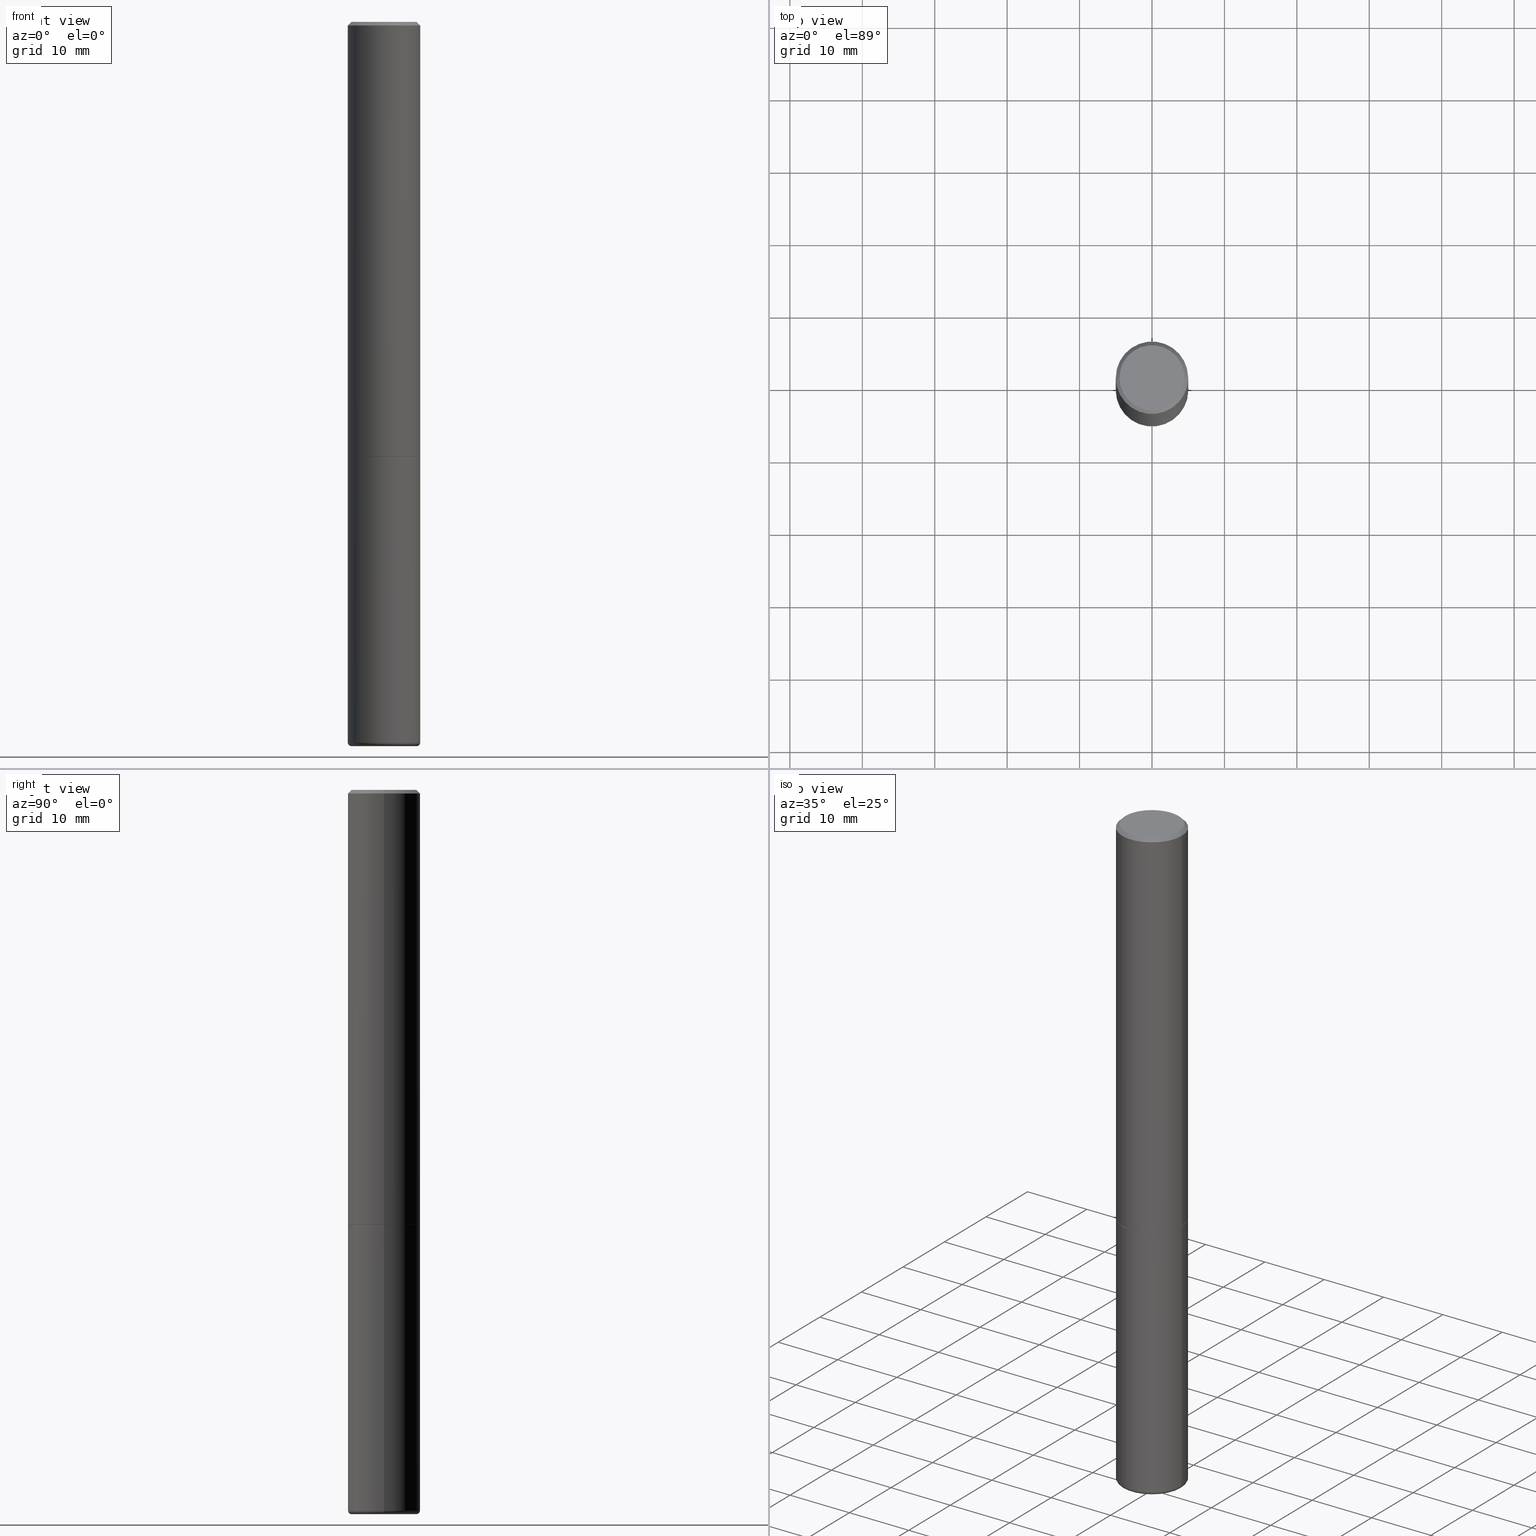
[diagram: canonical four-view strip — front | top / right | iso, engineering-drawing reading convention]
A machine part, canonical four-view strip (front | top / right | iso — engineering-drawing reading convention). The complete STEP part file that produces these views, byte-faithful:
ISO-10303-21;
HEADER;
FILE_DESCRIPTION (( 'STEP AP203' ),
    '1' );
FILE_NAME ('74426.STEP',
    '2024-03-06T15:13:11',
    ( '' ),
    ( '' ),
    'SwSTEP 2.0',
    'SolidWorks 2023',
    '' );
FILE_SCHEMA (( 'CONFIG_CONTROL_DESIGN' ));
ENDSEC;

DATA;
#1 = ORIENTED_EDGE ( 'NONE', *, *, #358, .T. ) ;
#2 = COORDINATED_UNIVERSAL_TIME_OFFSET ( 5, 0, .BEHIND. ) ;
#3 = DIRECTION ( 'NONE',  ( 1.000000000000000000, -6.982962677686270655E-15, 0.000000000000000000 ) ) ;
#4 = VERTEX_POINT ( 'NONE', #140 ) ;
#5 = AXIS2_PLACEMENT_3D ( 'NONE', #351, #193, #187 ) ;
#6 = EDGE_LOOP ( 'NONE', ( #265, #36 ) ) ;
#7 = PRODUCT_DEFINITION ( 'UNKNOWN', '', #348, #110 ) ;
#8 = VECTOR ( 'NONE', #238, 39.37007874015748143 ) ;
#9 = DIRECTION ( 'NONE',  ( 1.000000000000000000, -6.982962677686269866E-15, 0.000000000000000000 ) ) ;
#10 = CARTESIAN_POINT ( 'NONE',  ( -0.1968500000000000250, -9.563675158289009718E-15, -2.362199999999999633 ) ) ;
#11 = DIRECTION ( 'NONE',  ( 1.000000000000000000, -6.982962677686268288E-15, 0.000000000000000000 ) ) ;
#12 = CARTESIAN_POINT ( 'NONE',  ( -0.1968500000000000527, 1.304766576325678902E-15, -0.02000000000000004205 ) ) ;
#13 = ADVANCED_FACE ( 'NONE', ( #309 ), #249, .F. ) ;
#14 = DIRECTION ( 'NONE',  ( -2.445468806185136597E-29, 3.491481338843145583E-15, 1.000000000000000000 ) ) ;
#15 = CARTESIAN_POINT ( 'NONE',  ( 9.579634954469036932E-29, -1.367717984865025539E-14, -3.917300000000000448 ) ) ;
#16 = DIRECTION ( 'NONE',  ( -0.7071067811865462405, 2.468850131082243650E-15, -0.7071067811865486830 ) ) ;
#17 = VECTOR ( 'NONE', #163, 39.37007874015748854 ) ;
#18 = DIRECTION ( 'NONE',  ( 2.445468806185136597E-29, -3.491481338843145583E-15, -1.000000000000000000 ) ) ;
#19 = ORIENTED_EDGE ( 'NONE', *, *, #258, .F. ) ;
#20 = APPROVAL ( #64, 'UNSPECIFIED' ) ;
#21 = CARTESIAN_POINT ( 'NONE',  ( 0.1968500000000000527, -1.420318657638189516E-15, -0.02000000000000004205 ) ) ;
#22 = AXIS2_PLACEMENT_3D ( 'NONE', #122, #293, #253 ) ;
#23 = PLANE ( 'NONE',  #156 ) ;
#24 = FACE_OUTER_BOUND ( 'NONE', #6, .T. ) ;
#25 = PRODUCT_RELATED_PRODUCT_CATEGORY ( 'detail', '', ( #61 ) ) ;
#26 = CONICAL_SURFACE ( 'NONE', #92, 0.1968500000000000527, 0.7853981633974466137 ) ;
#27 = AXIS2_PLACEMENT_3D ( 'NONE', #305, #229, #58 ) ;
#28 = VERTEX_POINT ( 'NONE', #150 ) ;
#29 = MECHANICAL_CONTEXT ( 'NONE', #211, 'mechanical' ) ;
#30 = ORIENTED_EDGE ( 'NONE', *, *, #219, .T. ) ;
#31 = ORIENTED_EDGE ( 'NONE', *, *, #311, .T. ) ;
#32 = ORIENTED_EDGE ( 'NONE', *, *, #117, .F. ) ;
#33 = EDGE_CURVE ( 'NONE', #116, #138, #398, .T. ) ;
#34 = DIRECTION ( 'NONE',  ( 1.000000000000000000, -6.982962677686266711E-15, 0.000000000000000000 ) ) ;
#35 = AXIS2_PLACEMENT_3D ( 'NONE', #223, #49, #160 ) ;
#36 = ORIENTED_EDGE ( 'NONE', *, *, #196, .T. ) ;
#37 = AXIS2_PLACEMENT_3D ( 'NONE', #254, #380, #95 ) ;
#38 = ORIENTED_EDGE ( 'NONE', *, *, #117, .T. ) ;
#39 = ORIENTED_EDGE ( 'NONE', *, *, #311, .F. ) ;
#40 = CARTESIAN_POINT ( 'NONE',  ( 0.1968500000000002748, -9.618681940378978228E-15, -2.361199999999999743 ) ) ;
#41 = VERTEX_POINT ( 'NONE', #40 ) ;
#42 = VECTOR ( 'NONE', #297, 39.37007874015748143 ) ;
#43 = PRODUCT_DEFINITION_SHAPE ( 'NONE', 'NONE',  #7 ) ;
#44 = CARTESIAN_POINT ( 'NONE',  ( 5.776686413970529753E-29, -8.247577218615278049E-15, -2.362199999999999633 ) ) ;
#45 = PERSON_AND_ORGANIZATION ( #373, #354 ) ;
#46 = DIRECTION ( 'NONE',  ( -2.445468806185136597E-29, 3.491481338843145583E-15, 1.000000000000000000 ) ) ;
#47 = CC_DESIGN_PERSON_AND_ORGANIZATION_ASSIGNMENT ( #415, #137, ( #7 ) ) ;
#48 = DIRECTION ( 'NONE',  ( -2.438088387897960049E-29, 3.491481338843145188E-15, 1.000000000000000000 ) ) ;
#49 = DIRECTION ( 'NONE',  ( -2.445468806185136597E-29, 3.491481338843145583E-15, 1.000000000000000000 ) ) ;
#50 = AXIS2_PLACEMENT_3D ( 'NONE', #228, #379, #346 ) ;
#51 = CARTESIAN_POINT ( 'NONE',  ( 4.890937612370283668E-31, -6.982962677686305168E-17, -0.02000000000000004205 ) ) ;
#52 = APPROVAL_PERSON_ORGANIZATION ( #409, #121, #332 ) ;
#53 = FACE_OUTER_BOUND ( 'NONE', #74, .T. ) ;
#54 = DIRECTION ( 'NONE',  ( 1.000000000000000000, -6.982962677686268288E-15, 0.000000000000000000 ) ) ;
#55 = APPROVAL ( #375, 'UNSPECIFIED' ) ;
#56 = DIRECTION ( 'NONE',  ( -2.445468806185136597E-29, 3.491481338843145583E-15, 1.000000000000000000 ) ) ;
#57 = CARTESIAN_POINT ( 'NONE',  ( 4.890937612370283668E-31, -6.982962677686305168E-17, -0.02000000000000004205 ) ) ;
#58 = DIRECTION ( 'NONE',  ( 1.000000000000000000, -6.982962677686262766E-15, 0.000000000000000000 ) ) ;
#59 = ADVANCED_FACE ( 'NONE', ( #85 ), #26, .T. ) ;
#60 = APPROVAL_STATUS ( 'not_yet_approved' ) ;
#61 = PRODUCT ( '74426', '74426', '', ( #29 ) ) ;
#62 = AXIS2_PLACEMENT_3D ( 'NONE', #284, #183, #246 ) ;
#63 = ORIENTED_EDGE ( 'NONE', *, *, #145, .F. ) ;
#64 = APPROVAL_STATUS ( 'not_yet_approved' ) ;
#65 = EDGE_CURVE ( 'NONE', #113, #142, #385, .T. ) ;
#66 = ORIENTED_EDGE ( 'NONE', *, *, #411, .T. ) ;
#67 = VERTEX_POINT ( 'NONE', #154 ) ;
#68 = LINE ( 'NONE', #202, #8 ) ;
#69 = ORIENTED_EDGE ( 'NONE', *, *, #399, .F. ) ;
#70 = CALENDAR_DATE ( 2024, 6, 3 ) ;
#71 = AXIS2_PLACEMENT_3D ( 'NONE', #199, #404, #296 ) ;
#72 = ORIENTED_EDGE ( 'NONE', *, *, #145, .T. ) ;
#73 = CIRCLE ( 'NONE', #37, 0.1968500000000002748 ) ;
#74 = EDGE_LOOP ( 'NONE', ( #388, #66, #234, #362 ) ) ;
#75 = DATE_AND_TIME ( #220, #174 ) ;
#76 = CARTESIAN_POINT ( 'NONE',  ( 9.627810689950883669E-29, -1.374596203102546341E-14, -3.937000000000000277 ) ) ;
#77 = DIRECTION ( 'NONE',  ( -2.445468806185136597E-29, 3.491481338843145583E-15, 1.000000000000000000 ) ) ;
#78 = APPLICATION_CONTEXT ( 'configuration controlled 3d designs of mechanical parts and assemblies' ) ;
#79 = ADVANCED_FACE ( 'NONE', ( #181 ), #252, .T. ) ;
#80 = DIRECTION ( 'NONE',  ( 1.000000000000000000, -6.982962677686266711E-15, 0.000000000000000000 ) ) ;
#81 = CLOSED_SHELL ( 'NONE', ( #79, #231, #270, #316, #94, #139 ) ) ;
#82 = CC_DESIGN_APPROVAL ( #20, ( #7 ) ) ;
#83 = FACE_OUTER_BOUND ( 'NONE', #335, .T. ) ;
#84 = FACE_OUTER_BOUND ( 'NONE', #206, .T. ) ;
#85 = FACE_OUTER_BOUND ( 'NONE', #173, .T. ) ;
#86 = CARTESIAN_POINT ( 'NONE',  ( -0.1968499999999999417, -1.227847647330649996E-14, -3.917300000000000448 ) ) ;
#87 = DIRECTION ( 'NONE',  ( -2.445468806185136597E-29, 3.491481338843145583E-15, 1.000000000000000000 ) ) ;
#88 = CARTESIAN_POINT ( 'NONE',  ( 0.1968500000000000527, -1.420318657638189516E-15, -0.02000000000000004205 ) ) ;
#89 = MANIFOLD_SOLID_BREP ( 'Body-Move/Copy2[1]', #81 ) ;
#90 = DIRECTION ( 'NONE',  ( 1.000000000000000000, -6.982962677686266711E-15, 4.870572768024644056E-29 ) ) ;
#91 = EDGE_LOOP ( 'NONE', ( #301, #63, #413, #273 ) ) ;
#92 = AXIS2_PLACEMENT_3D ( 'NONE', #186, #18, #214 ) ;
#93 = VECTOR ( 'NONE', #198, 39.37007874015748143 ) ;
#94 = ADVANCED_FACE ( 'NONE', ( #341 ), #394, .T. ) ;
#95 = DIRECTION ( 'NONE',  ( 1.000000000000000000, -6.982962677686269077E-15, 0.000000000000000000 ) ) ;
#96 = DIRECTION ( 'NONE',  ( -2.445468806185136877E-29, 3.491481338843145188E-15, 1.000000000000000000 ) ) ;
#97 = DIRECTION ( 'NONE',  ( -2.445468806185136597E-29, 3.491481338843145583E-15, 1.000000000000000000 ) ) ;
#98 = ADVANCED_FACE ( 'NONE', ( #325 ), #123, .T. ) ;
#99 = AXIS2_PLACEMENT_3D ( 'NONE', #130, #328, #405 ) ;
#100 = CARTESIAN_POINT ( 'NONE',  ( 1.234936949548815012E-15, 0.1768499999999998407, -5.064871500317991731E-16 ) ) ;
#101 = DIRECTION ( 'NONE',  ( 1.000000000000000000, -6.982962677686266711E-15, 4.876176775795935793E-29 ) ) ;
#102 = VERTEX_POINT ( 'NONE', #260 ) ;
#103 = EDGE_LOOP ( 'NONE', ( #32, #363 ) ) ;
#104 = ORIENTED_EDGE ( 'NONE', *, *, #235, .T. ) ;
#105 = APPROVAL_ROLE ( '' ) ;
#106 = EDGE_LOOP ( 'NONE', ( #204, #302, #342, #109 ) ) ;
#107 = DATE_TIME_ROLE ( 'creation_date' ) ;
#108 = VERTEX_POINT ( 'NONE', #192 ) ;
#109 = ORIENTED_EDGE ( 'NONE', *, *, #356, .F. ) ;
#110 = DESIGN_CONTEXT ( 'detailed design', #78, 'design' ) ;
#111 = PERSON_AND_ORGANIZATION_ROLE ( 'creator' ) ;
#112 = AXIS2_PLACEMENT_3D ( 'NONE', #184, #314, #11 ) ;
#113 = VERTEX_POINT ( 'NONE', #86 ) ;
#114 = CALENDAR_DATE ( 2024, 6, 3 ) ;
#115 = DIRECTION ( 'NONE',  ( -6.982962677686266711E-15, -1.000000000000000000, 3.491481338843145583E-15 ) ) ;
#116 = VERTEX_POINT ( 'NONE', #324 ) ;
#117 = EDGE_CURVE ( 'NONE', #307, #4, #406, .T. ) ;
#118 = CIRCLE ( 'NONE', #180, 0.1768499999999998407 ) ;
#119 = CARTESIAN_POINT ( 'NONE',  ( 0.1771500000000000019, -1.491421168700237936E-14, -3.917300000000000448 ) ) ;
#120 = DIRECTION ( 'NONE',  ( 1.000000000000000000, -6.982962677686269866E-15, 0.000000000000000000 ) ) ;
#121 = APPROVAL ( #60, 'UNSPECIFIED' ) ;
#122 = CARTESIAN_POINT ( 'NONE',  ( 9.627810689950883669E-29, -1.374596203102546341E-14, -3.937000000000000277 ) ) ;
#123 = CONICAL_SURFACE ( 'NONE', #215, 0.1958499999999999963, 0.7853981633975507526 ) ;
#124 = CARTESIAN_POINT ( 'NONE',  ( 0.1968499999999999417, -1.505177605175279857E-14, -3.917300000000000448 ) ) ;
#125 = APPROVAL_PERSON_ORGANIZATION ( #283, #55, #277 ) ;
#126 = DIRECTION ( 'NONE',  ( -2.445468806185136597E-29, 3.491481338843145583E-15, 1.000000000000000000 ) ) ;
#127 = ADVANCED_BREP_SHAPE_REPRESENTATION ( '74426', ( #89, #372, #169 ), #368 ) ;
#128 = DIRECTION ( 'NONE',  ( 1.000000000000000000, -6.982962677686266711E-15, 0.000000000000000000 ) ) ;
#129 = DIRECTION ( 'NONE',  ( 1.000000000000000000, -6.982962677686261977E-15, 4.883557194083110659E-29 ) ) ;
#130 = CARTESIAN_POINT ( 'NONE',  ( 5.776686413970529753E-29, -8.247577218615278049E-15, -2.362199999999999633 ) ) ;
#131 = CONICAL_SURFACE ( 'NONE', #112, 0.1958499999999999963, 0.7853981633975507526 ) ;
#132 = CALENDAR_DATE ( 2024, 6, 3 ) ;
#133 = EDGE_CURVE ( 'NONE', #102, #176, #315, .T. ) ;
#134 = ORIENTED_EDGE ( 'NONE', *, *, #262, .T. ) ;
#135 = CARTESIAN_POINT ( 'NONE',  ( 0.000000000000000000, 0.000000000000000000, 0.000000000000000000 ) ) ;
#136 = AXIS2_PLACEMENT_3D ( 'NONE', #44, #188, #310 ) ;
#137 = PERSON_AND_ORGANIZATION_ROLE ( 'creator' ) ;
#138 = VERTEX_POINT ( 'NONE', #281 ) ;
#139 = ADVANCED_FACE ( 'NONE', ( #286 ), #401, .T. ) ;
#140 = CARTESIAN_POINT ( 'NONE',  ( -0.1958499999999999963, -6.850680816280898078E-15, -2.362199999999999633 ) ) ;
#141 =( LENGTH_UNIT ( ) NAMED_UNIT ( * ) SI_UNIT ( $, .METRE. ) );
#142 = VERTEX_POINT ( 'NONE', #124 ) ;
#143 = SECURITY_CLASSIFICATION_LEVEL ( 'unclassified' ) ;
#144 = CIRCLE ( 'NONE', #264, 0.1968499999999999694 ) ;
#145 = EDGE_CURVE ( 'NONE', #102, #108, #239, .T. ) ;
#146 = CARTESIAN_POINT ( 'NONE',  ( 0.1958499999999999963, -9.615190459040133643E-15, -2.362199999999999633 ) ) ;
#147 = CARTESIAN_POINT ( 'NONE',  ( 0.000000000000000000, 0.000000000000000000, 0.000000000000000000 ) ) ;
#148 = EDGE_CURVE ( 'NONE', #142, #67, #382, .T. ) ;
#149 = CARTESIAN_POINT ( 'NONE',  ( 0.000000000000000000, 0.000000000000000000, 0.000000000000000000 ) ) ;
#150 = CARTESIAN_POINT ( 'NONE',  ( -0.1968500000000002748, -2.758254306682887043E-15, -2.361199999999999743 ) ) ;
#151 = DIRECTION ( 'NONE',  ( -2.445468806185136597E-29, 3.491481338843145583E-15, 1.000000000000000000 ) ) ;
#152 = DIRECTION ( 'NONE',  ( -2.445468806185136597E-29, 3.491481338843145583E-15, 1.000000000000000000 ) ) ;
#153 = CALENDAR_DATE ( 2024, 6, 3 ) ;
#154 = CARTESIAN_POINT ( 'NONE',  ( 0.1968500000000000250, -9.622173421717819657E-15, -2.362199999999999633 ) ) ;
#155 = AXIS2_PLACEMENT_3D ( 'NONE', #217, #151, #34 ) ;
#156 = AXIS2_PLACEMENT_3D ( 'NONE', #100, #165, #299 ) ;
#157 = LINE ( 'NONE', #313, #416 ) ;
#158 = CARTESIAN_POINT ( 'NONE',  ( 5.776686413970529753E-29, -8.247577218615278049E-15, -2.362199999999999633 ) ) ;
#159 = EDGE_CURVE ( 'NONE', #138, #116, #225, .T. ) ;
#160 = DIRECTION ( 'NONE',  ( 1.000000000000000000, -6.982962677686262766E-15, 0.000000000000000000 ) ) ;
#161 = EDGE_CURVE ( 'NONE', #177, #176, #245, .T. ) ;
#162 = VECTOR ( 'NONE', #16, 39.37007874015748854 ) ;
#163 = DIRECTION ( 'NONE',  ( 0.7071067811865462405, -7.319954787623251312E-15, -0.7071067811865486830 ) ) ;
#164 = AXIS2_PLACEMENT_3D ( 'NONE', #371, #46, #396 ) ;
#165 = DIRECTION ( 'NONE',  ( 2.438088387897960049E-29, -3.491481338843145188E-15, -1.000000000000000000 ) ) ;
#166 = DIRECTION ( 'NONE',  ( 2.445468806185136597E-29, -3.491481338843145583E-15, -1.000000000000000000 ) ) ;
#167 = PLANE ( 'NONE',  #136 ) ;
#168 = EDGE_CURVE ( 'NONE', #108, #177, #352, .T. ) ;
#169 = AXIS2_PLACEMENT_3D ( 'NONE', #135, #274, #392 ) ;
#170 = CC_DESIGN_PERSON_AND_ORGANIZATION_ASSIGNMENT ( #45, #320, ( #300 ) ) ;
#171 =( NAMED_UNIT ( * ) SI_UNIT ( $, .STERADIAN. ) SOLID_ANGLE_UNIT ( ) );
#172 = EDGE_LOOP ( 'NONE', ( #236, #31, #397, #275 ) ) ;
#173 = EDGE_LOOP ( 'NONE', ( #232, #276, #359, #267 ) ) ;
#174 = LOCAL_TIME ( 10, 13, 11.00000000000000000, #344 ) ;
#175 = PERSON_AND_ORGANIZATION ( #373, #354 ) ;
#176 = VERTEX_POINT ( 'NONE', #318 ) ;
#177 = VERTEX_POINT ( 'NONE', #88 ) ;
#178 = ORIENTED_EDGE ( 'NONE', *, *, #295, .F. ) ;
#179 = DIMENSIONAL_EXPONENTS ( 1.000000000000000000, 0.000000000000000000, 0.000000000000000000, 0.000000000000000000, 0.000000000000000000, 0.000000000000000000, 0.000000000000000000 ) ;
#180 = AXIS2_PLACEMENT_3D ( 'NONE', #251, #378, #90 ) ;
#181 = FACE_OUTER_BOUND ( 'NONE', #172, .T. ) ;
#182 = ORIENTED_EDGE ( 'NONE', *, *, #213, .F. ) ;
#183 = DIRECTION ( 'NONE',  ( 7.105427357601001859E-15, 1.000000000000000000, -3.491481338843145583E-15 ) ) ;
#184 = CARTESIAN_POINT ( 'NONE',  ( 5.776686413970529753E-29, -8.247577218615278049E-15, -2.362199999999999633 ) ) ;
#185 = FACE_OUTER_BOUND ( 'NONE', #364, .T. ) ;
#186 = CARTESIAN_POINT ( 'NONE',  ( 4.890937612370283668E-31, -6.982962677686305168E-17, -0.02000000000000004205 ) ) ;
#187 = DIRECTION ( 'NONE',  ( 1.000000000000000000, -6.982962677686261977E-15, 4.883557194083110659E-29 ) ) ;
#188 = DIRECTION ( 'NONE',  ( 2.438088387897960049E-29, -3.491481338843145188E-15, -1.000000000000000000 ) ) ;
#189 = AXIS2_PLACEMENT_3D ( 'NONE', #374, #48, #376 ) ;
#190 = LOCAL_TIME ( 10, 13, 11.00000000000000000, #387 ) ;
#191 = DIRECTION ( 'NONE',  ( -2.445468806185136597E-29, 3.491481338843145583E-15, 1.000000000000000000 ) ) ;
#192 = CARTESIAN_POINT ( 'NONE',  ( 0.1768499999999998407, -1.316798864272041549E-15, 2.219626494852302982E-16 ) ) ;
#193 = DIRECTION ( 'NONE',  ( -2.445468806185136597E-29, 3.491481338843145583E-15, 1.000000000000000000 ) ) ;
#194 = FACE_OUTER_BOUND ( 'NONE', #414, .T. ) ;
#195 = VECTOR ( 'NONE', #96, 39.37007874015748143 ) ;
#196 = EDGE_CURVE ( 'NONE', #336, #67, #303, .T. ) ;
#197 = CC_DESIGN_APPROVAL ( #121, ( #348 ) ) ;
#198 = DIRECTION ( 'NONE',  ( 0.7071067811866199593, -2.468850131083015945E-15, 0.7071067811864750752 ) ) ;
#199 = CARTESIAN_POINT ( 'NONE',  ( 5.774240945164344150E-29, -8.244085737276433464E-15, -2.361199999999999743 ) ) ;
#200 =( NAMED_UNIT ( * ) PLANE_ANGLE_UNIT ( ) SI_UNIT ( $, .RADIAN. ) );
#201 = CONICAL_SURFACE ( 'NONE', #402, 0.1968500000000000527, 0.7853981633974466137 ) ;
#202 = CARTESIAN_POINT ( 'NONE',  ( -0.1968500000000001915, 1.398703375343758577E-15, -9.682923725166790684E-30 ) ) ;
#203 = ORIENTED_EDGE ( 'NONE', *, *, #411, .F. ) ;
#204 = ORIENTED_EDGE ( 'NONE', *, *, #159, .T. ) ;
#205 = DATE_AND_TIME ( #70, #269 ) ;
#206 = EDGE_LOOP ( 'NONE', ( #39, #279, #271, #350 ) ) ;
#207 = UNCERTAINTY_MEASURE_WITH_UNIT (LENGTH_MEASURE( 1.000000000000000082E-05 ), #384, 'distance_accuracy_value', 'NONE');
#208 = LINE ( 'NONE', #366, #327 ) ;
#209 = EDGE_LOOP ( 'NONE', ( #178, #393, #418, #361 ) ) ;
#210 = CC_DESIGN_DATE_AND_TIME_ASSIGNMENT ( #243, #340, ( #300 ) ) ;
#211 = APPLICATION_CONTEXT ( 'configuration controlled 3d designs of mechanical parts and assemblies' ) ;
#212 = APPROVAL_DATE_TIME ( #75, #55 ) ;
#213 = EDGE_CURVE ( 'NONE', #176, #177, #282, .T. ) ;
#214 = DIRECTION ( 'NONE',  ( -1.000000000000000000, 6.982962677686266711E-15, 0.000000000000000000 ) ) ;
#215 = AXIS2_PLACEMENT_3D ( 'NONE', #158, #56, #54 ) ;
#216 = CYLINDRICAL_SURFACE ( 'NONE', #381, 0.1968500000000001915 ) ;
#217 = CARTESIAN_POINT ( 'NONE',  ( 4.890937612370283668E-31, -6.982962677686305168E-17, -0.02000000000000004205 ) ) ;
#218 = PERSON_AND_ORGANIZATION ( #373, #354 ) ;
#219 = EDGE_CURVE ( 'NONE', #28, #41, #263, .T. ) ;
#220 = CALENDAR_DATE ( 2024, 6, 3 ) ;
#221 = DIRECTION ( 'NONE',  ( 1.000000000000000000, -6.982962677686266711E-15, 4.876176775795935793E-29 ) ) ;
#222 = EDGE_CURVE ( 'NONE', #67, #336, #319, .T. ) ;
#223 = CARTESIAN_POINT ( 'NONE',  ( 5.776686413970529753E-29, -8.247577218615278049E-15, -2.362199999999999633 ) ) ;
#224 = CARTESIAN_POINT ( 'NONE',  ( 0.1968499999999999694, -1.374596203102541411E-15, 9.598753983154298056E-30 ) ) ;
#225 = CIRCLE ( 'NONE', #50, 0.1771500000000000574 ) ;
#226 = CC_DESIGN_SECURITY_CLASSIFICATION ( #300, ( #348 ) ) ;
#227 = ADVANCED_FACE ( 'NONE', ( #194 ), #23, .F. ) ;
#228 = CARTESIAN_POINT ( 'NONE',  ( 9.627810689950883669E-29, -1.374596203102546341E-14, -3.937000000000000277 ) ) ;
#229 = DIRECTION ( 'NONE',  ( -2.445468806185136597E-29, 3.491481338843145583E-15, 1.000000000000000000 ) ) ;
#230 = LOCAL_TIME ( 10, 13, 11.00000000000000000, #2 ) ;
#231 = ADVANCED_FACE ( 'NONE', ( #294 ), #338, .T. ) ;
#232 = ORIENTED_EDGE ( 'NONE', *, *, #358, .F. ) ;
#233 = APPROVAL_PERSON_ORGANIZATION ( #360, #20, #105 ) ;
#234 = ORIENTED_EDGE ( 'NONE', *, *, #161, .F. ) ;
#235 = EDGE_CURVE ( 'NONE', #307, #41, #261, .T. ) ;
#236 = ORIENTED_EDGE ( 'NONE', *, *, #289, .T. ) ;
#237 = COORDINATED_UNIVERSAL_TIME_OFFSET ( 5, 0, .BEHIND. ) ;
#238 = DIRECTION ( 'NONE',  ( -2.445468806185136877E-29, 3.491481338843145188E-15, 1.000000000000000000 ) ) ;
#239 = CIRCLE ( 'NONE', #326, 0.1768499999999998407 ) ;
#240 = CIRCLE ( 'NONE', #408, 0.01969999999999989468 ) ;
#241 = COORDINATED_UNIVERSAL_TIME_OFFSET ( 5, 0, .BEHIND. ) ;
#242 = ADVANCED_FACE ( 'NONE', ( #287 ), #201, .T. ) ;
#243 = DATE_AND_TIME ( #153, #395 ) ;
#244 = CYLINDRICAL_SURFACE ( 'NONE', #321, 0.1968500000000001915 ) ;
#245 = CIRCLE ( 'NONE', #255, 0.1968500000000000527 ) ;
#246 = DIRECTION ( 'NONE',  ( -1.000000000000000000, 7.105427357600965571E-15, 0.000000000000000000 ) ) ;
#247 = PERSON_AND_ORGANIZATION_ROLE ( 'design_supplier' ) ;
#248 = DIRECTION ( 'NONE',  ( 1.000000000000000000, -6.982962677686266711E-15, 4.876176775795935793E-29 ) ) ;
#249 = PLANE ( 'NONE',  #189 ) ;
#250 = DIRECTION ( 'NONE',  ( -2.445468806185136597E-29, 3.491481338843145583E-15, 1.000000000000000000 ) ) ;
#251 = CARTESIAN_POINT ( 'NONE',  ( -5.428027354543142984E-45, 7.749784485978325769E-31, 2.219626494852213988E-16 ) ) ;
#252 = CYLINDRICAL_SURFACE ( 'NONE', #407, 0.1968499999999999694 ) ;
#253 = DIRECTION ( 'NONE',  ( -1.000000000000000000, 6.982962677686265922E-15, -4.876176775795935793E-29 ) ) ;
#254 = CARTESIAN_POINT ( 'NONE',  ( 5.774240945164344150E-29, -8.244085737276433464E-15, -2.361199999999999743 ) ) ;
#255 = AXIS2_PLACEMENT_3D ( 'NONE', #51, #191, #128 ) ;
#256 = CIRCLE ( 'NONE', #62, 0.01969999999999989468 ) ;
#257 = DIRECTION ( 'NONE',  ( 1.000000000000000000, -6.982962677686266711E-15, 4.870572768024644056E-29 ) ) ;
#258 = EDGE_CURVE ( 'NONE', #41, #28, #73, .T. ) ;
#259 = LINE ( 'NONE', #383, #42 ) ;
#260 = CARTESIAN_POINT ( 'NONE',  ( -0.1768499999999998407, 1.269851762937247450E-15, 2.219626494852126227E-16 ) ) ;
#261 = LINE ( 'NONE', #353, #93 ) ;
#262 = EDGE_CURVE ( 'NONE', #41, #177, #259, .T. ) ;
#263 = CIRCLE ( 'NONE', #71, 0.1968500000000002748 ) ;
#264 = AXIS2_PLACEMENT_3D ( 'NONE', #278, #345, #9 ) ;
#265 = ORIENTED_EDGE ( 'NONE', *, *, #222, .T. ) ;
#266 = EDGE_CURVE ( 'NONE', #4, #307, #330, .T. ) ;
#267 = ORIENTED_EDGE ( 'NONE', *, *, #133, .F. ) ;
#268 = AXIS2_PLACEMENT_3D ( 'NONE', #76, #322, #3 ) ;
#269 = LOCAL_TIME ( 10, 13, 11.00000000000000000, #237 ) ;
#270 = ADVANCED_FACE ( 'NONE', ( #24 ), #167, .F. ) ;
#271 = ORIENTED_EDGE ( 'NONE', *, *, #148, .T. ) ;
#272 = DATE_AND_TIME ( #132, #190 ) ;
#273 = ORIENTED_EDGE ( 'NONE', *, *, #213, .T. ) ;
#274 = DIRECTION ( 'NONE',  ( 0.000000000000000000, 0.000000000000000000, 1.000000000000000000 ) ) ;
#275 = ORIENTED_EDGE ( 'NONE', *, *, #148, .F. ) ;
#276 = ORIENTED_EDGE ( 'NONE', *, *, #168, .T. ) ;
#277 = APPROVAL_ROLE ( '' ) ;
#278 = CARTESIAN_POINT ( 'NONE',  ( 9.579634954469036932E-29, -1.367717984865025539E-14, -3.917300000000000448 ) ) ;
#279 = ORIENTED_EDGE ( 'NONE', *, *, #65, .T. ) ;
#280 = CARTESIAN_POINT ( 'NONE',  ( 0.000000000000000000, 0.000000000000000000, 0.000000000000000000 ) ) ;
#281 = CARTESIAN_POINT ( 'NONE',  ( 0.1771500000000000574, -1.498299386937758739E-14, -3.937000000000000277 ) ) ;
#282 = CIRCLE ( 'NONE', #155, 0.1968500000000000527 ) ;
#283 = PERSON_AND_ORGANIZATION ( #373, #354 ) ;
#284 = CARTESIAN_POINT ( 'NONE',  ( -0.1771500000000000019, -1.241845339225123848E-14, -3.917300000000000448 ) ) ;
#285 = CC_DESIGN_PERSON_AND_ORGANIZATION_ASSIGNMENT ( #312, #247, ( #348 ) ) ;
#286 = FACE_OUTER_BOUND ( 'NONE', #367, .T. ) ;
#287 = FACE_OUTER_BOUND ( 'NONE', #91, .T. ) ;
#288 = DIRECTION ( 'NONE',  ( -2.445468806185136877E-29, 3.491481338843145188E-15, 1.000000000000000000 ) ) ;
#289 = EDGE_CURVE ( 'NONE', #142, #113, #144, .T. ) ;
#290 = DIRECTION ( 'NONE',  ( -1.000000000000000000, 6.982962677686266711E-15, 0.000000000000000000 ) ) ;
#291 = CC_DESIGN_PERSON_AND_ORGANIZATION_ASSIGNMENT ( #218, #111, ( #348 ) ) ;
#292 = DIRECTION ( 'NONE',  ( 1.000000000000000000, -6.982962677686268288E-15, 0.000000000000000000 ) ) ;
#293 = DIRECTION ( 'NONE',  ( 2.438088387897960049E-29, -3.491481338843145188E-15, -1.000000000000000000 ) ) ;
#294 = FACE_OUTER_BOUND ( 'NONE', #106, .T. ) ;
#295 = EDGE_CURVE ( 'NONE', #116, #113, #256, .T. ) ;
#296 = DIRECTION ( 'NONE',  ( 1.000000000000000000, -6.982962677686269077E-15, 0.000000000000000000 ) ) ;
#297 = DIRECTION ( 'NONE',  ( -2.445468806185136877E-29, 3.491481338843145188E-15, 1.000000000000000000 ) ) ;
#298 = APPROVAL_DATE_TIME ( #205, #20 ) ;
#299 = DIRECTION ( 'NONE',  ( -1.000000000000000000, 6.982962677686265922E-15, -4.876176775795935793E-29 ) ) ;
#300 = SECURITY_CLASSIFICATION ( '', '', #143 ) ;
#301 = ORIENTED_EDGE ( 'NONE', *, *, #168, .F. ) ;
#302 = ORIENTED_EDGE ( 'NONE', *, *, #295, .T. ) ;
#303 = CIRCLE ( 'NONE', #35, 0.1968500000000000250 ) ;
#304 = CC_DESIGN_APPROVAL ( #55, ( #300 ) ) ;
#305 = CARTESIAN_POINT ( 'NONE',  ( 5.776686413970529753E-29, -8.247577218615278049E-15, -2.362199999999999633 ) ) ;
#306 = ORIENTED_EDGE ( 'NONE', *, *, #159, .F. ) ;
#307 = VERTEX_POINT ( 'NONE', #146 ) ;
#308 = ORIENTED_EDGE ( 'NONE', *, *, #219, .F. ) ;
#309 = FACE_OUTER_BOUND ( 'NONE', #103, .T. ) ;
#310 = DIRECTION ( 'NONE',  ( -1.000000000000000000, 6.982962677686265922E-15, -4.876176775795935793E-29 ) ) ;
#311 = EDGE_CURVE ( 'NONE', #113, #336, #157, .T. ) ;
#312 = PERSON_AND_ORGANIZATION ( #373, #354 ) ;
#313 = CARTESIAN_POINT ( 'NONE',  ( -0.1968499999999999694, 1.398703375343756999E-15, -9.682923725166782276E-30 ) ) ;
#314 = DIRECTION ( 'NONE',  ( -2.445468806185136597E-29, 3.491481338843145583E-15, 1.000000000000000000 ) ) ;
#315 = LINE ( 'NONE', #12, #162 ) ;
#316 = ADVANCED_FACE ( 'NONE', ( #84 ), #349, .T. ) ;
#317 = DATE_AND_TIME ( #114, #230 ) ;
#318 = CARTESIAN_POINT ( 'NONE',  ( -0.1968500000000000527, 1.304766576325678902E-15, -0.02000000000000004205 ) ) ;
#319 = CIRCLE ( 'NONE', #27, 0.1968500000000000250 ) ;
#320 = PERSON_AND_ORGANIZATION_ROLE ( 'classification_officer' ) ;
#321 = AXIS2_PLACEMENT_3D ( 'NONE', #149, #14, #248 ) ;
#322 = DIRECTION ( 'NONE',  ( -2.445468806185136597E-29, 3.491481338843145583E-15, 1.000000000000000000 ) ) ;
#323 = ADVANCED_FACE ( 'NONE', ( #185 ), #244, .T. ) ;
#324 = CARTESIAN_POINT ( 'NONE',  ( -0.1771500000000000574, -1.238285602396647324E-14, -3.937000000000000277 ) ) ;
#325 = FACE_OUTER_BOUND ( 'NONE', #339, .T. ) ;
#326 = AXIS2_PLACEMENT_3D ( 'NONE', #400, #250, #257 ) ;
#327 = VECTOR ( 'NONE', #329, 39.37007874015748143 ) ;
#328 = DIRECTION ( 'NONE',  ( -2.445468806185136597E-29, 3.491481338843145583E-15, 1.000000000000000000 ) ) ;
#329 = DIRECTION ( 'NONE',  ( -0.7071067811866199593, 7.493145998870616062E-15, 0.7071067811864750752 ) ) ;
#330 = CIRCLE ( 'NONE', #99, 0.1958499999999999963 ) ;
#331 = APPLICATION_PROTOCOL_DEFINITION ( 'international standard', 'config_control_design', 1994, #211 ) ;
#332 = APPROVAL_ROLE ( '' ) ;
#333 = CC_DESIGN_DATE_AND_TIME_ASSIGNMENT ( #272, #107, ( #7 ) ) ;
#334 = PERSON_AND_ORGANIZATION_ROLE ( 'design_owner' ) ;
#335 = EDGE_LOOP ( 'NONE', ( #38, #355, #19, #391 ) ) ;
#336 = VERTEX_POINT ( 'NONE', #10 ) ;
#337 = ORIENTED_EDGE ( 'NONE', *, *, #266, .T. ) ;
#338 = TOROIDAL_SURFACE ( 'NONE', #386, 0.1771500000000000019, 0.01969999999999987733 ) ;
#339 = EDGE_LOOP ( 'NONE', ( #69, #337, #104, #308 ) ) ;
#340 = DATE_TIME_ROLE ( 'classification_date' ) ;
#341 = FACE_OUTER_BOUND ( 'NONE', #209, .T. ) ;
#342 = ORIENTED_EDGE ( 'NONE', *, *, #289, .F. ) ;
#343 = AXIS2_PLACEMENT_3D ( 'NONE', #403, #152, #292 ) ;
#344 = COORDINATED_UNIVERSAL_TIME_OFFSET ( 5, 0, .BEHIND. ) ;
#345 = DIRECTION ( 'NONE',  ( -2.445468806185136597E-29, 3.491481338843145583E-15, 1.000000000000000000 ) ) ;
#346 = DIRECTION ( 'NONE',  ( 1.000000000000000000, -6.982962677686270655E-15, 0.000000000000000000 ) ) ;
#347 = CLOSED_SHELL ( 'NONE', ( #412, #377, #59, #242, #323, #98, #13, #227 ) ) ;
#348 = PRODUCT_DEFINITION_FORMATION_WITH_SPECIFIED_SOURCE ( 'ANY', '', #61, .NOT_KNOWN. ) ;
#349 = CYLINDRICAL_SURFACE ( 'NONE', #164, 0.1968499999999999694 ) ;
#350 = ORIENTED_EDGE ( 'NONE', *, *, #196, .F. ) ;
#351 = CARTESIAN_POINT ( 'NONE',  ( 9.579634954469036932E-29, -1.367717984865025539E-14, -3.917300000000000448 ) ) ;
#352 = LINE ( 'NONE', #21, #17 ) ;
#353 = CARTESIAN_POINT ( 'NONE',  ( 0.1958499999999999963, -9.615190459040133643E-15, -2.362199999999999633 ) ) ;
#354 = ORGANIZATION ( 'UNSPECIFIED', 'UNSPECIFIED', '' ) ;
#355 = ORIENTED_EDGE ( 'NONE', *, *, #399, .T. ) ;
#356 = EDGE_CURVE ( 'NONE', #138, #142, #240, .T. ) ;
#357 = LENGTH_MEASURE_WITH_UNIT ( LENGTH_MEASURE( 0.02539999999999999897 ), #141 );
#358 = EDGE_CURVE ( 'NONE', #108, #102, #118, .T. ) ;
#359 = ORIENTED_EDGE ( 'NONE', *, *, #161, .T. ) ;
#360 = PERSON_AND_ORGANIZATION ( #373, #354 ) ;
#361 = ORIENTED_EDGE ( 'NONE', *, *, #65, .F. ) ;
#362 = ORIENTED_EDGE ( 'NONE', *, *, #262, .F. ) ;
#363 = ORIENTED_EDGE ( 'NONE', *, *, #266, .F. ) ;
#364 = EDGE_LOOP ( 'NONE', ( #203, #30, #134, #182 ) ) ;
#365 = CC_DESIGN_PERSON_AND_ORGANIZATION_ASSIGNMENT ( #175, #334, ( #61 ) ) ;
#366 = CARTESIAN_POINT ( 'NONE',  ( -0.1958499999999999963, -6.855979270629121269E-15, -2.362199999999999633 ) ) ;
#367 = EDGE_LOOP ( 'NONE', ( #306, #390 ) ) ;
#368 =( GEOMETRIC_REPRESENTATION_CONTEXT ( 3 ) GLOBAL_UNCERTAINTY_ASSIGNED_CONTEXT ( ( #207 ) ) GLOBAL_UNIT_ASSIGNED_CONTEXT ( ( #384, #200, #171 ) ) REPRESENTATION_CONTEXT ( 'NONE', 'WORKASPACE' ) );
#369 = APPROVAL_DATE_TIME ( #317, #121 ) ;
#370 = SHAPE_DEFINITION_REPRESENTATION ( #43, #127 ) ;
#371 = CARTESIAN_POINT ( 'NONE',  ( 0.000000000000000000, 0.000000000000000000, 0.000000000000000000 ) ) ;
#372 = MANIFOLD_SOLID_BREP ( 'Body-Move/Copy2[2]', #347 ) ;
#373 = PERSON ( 'UNSPECIFIED', 'UNSPECIFIED', 'UNSPECIFIED', ('UNSPECIFIED'), ('UNSPECIFIED'), ('UNSPECIFIED') ) ;
#374 = CARTESIAN_POINT ( 'NONE',  ( 5.776686413970529753E-29, -8.247577218615278049E-15, -2.362199999999999633 ) ) ;
#375 = APPROVAL_STATUS ( 'not_yet_approved' ) ;
#376 = DIRECTION ( 'NONE',  ( 1.000000000000000000, -6.982962677686265922E-15, 4.876176775795935793E-29 ) ) ;
#377 = ADVANCED_FACE ( 'NONE', ( #53 ), #216, .T. ) ;
#378 = DIRECTION ( 'NONE',  ( -2.445468806185136597E-29, 3.491481338843145583E-15, 1.000000000000000000 ) ) ;
#379 = DIRECTION ( 'NONE',  ( -2.445468806185136597E-29, 3.491481338843145583E-15, 1.000000000000000000 ) ) ;
#380 = DIRECTION ( 'NONE',  ( -2.445468806185136597E-29, 3.491481338843145583E-15, 1.000000000000000000 ) ) ;
#381 = AXIS2_PLACEMENT_3D ( 'NONE', #280, #126, #101 ) ;
#382 = LINE ( 'NONE', #224, #195 ) ;
#383 = CARTESIAN_POINT ( 'NONE',  ( 0.1968500000000001915, -1.374596203102542989E-15, 9.598753983154309266E-30 ) ) ;
#384 =( CONVERSION_BASED_UNIT ( 'INCH', #357 ) LENGTH_UNIT ( ) NAMED_UNIT ( #179 ) );
#385 = CIRCLE ( 'NONE', #389, 0.1968499999999999694 ) ;
#386 = AXIS2_PLACEMENT_3D ( 'NONE', #410, #97, #129 ) ;
#387 = COORDINATED_UNIVERSAL_TIME_OFFSET ( 5, 0, .BEHIND. ) ;
#388 = ORIENTED_EDGE ( 'NONE', *, *, #258, .T. ) ;
#389 = AXIS2_PLACEMENT_3D ( 'NONE', #15, #77, #120 ) ;
#390 = ORIENTED_EDGE ( 'NONE', *, *, #33, .F. ) ;
#391 = ORIENTED_EDGE ( 'NONE', *, *, #235, .F. ) ;
#392 = DIRECTION ( 'NONE',  ( 1.000000000000000000, 0.000000000000000000, 0.000000000000000000 ) ) ;
#393 = ORIENTED_EDGE ( 'NONE', *, *, #33, .T. ) ;
#394 = TOROIDAL_SURFACE ( 'NONE', #5, 0.1771500000000000019, 0.01969999999999987733 ) ;
#395 = LOCAL_TIME ( 10, 13, 11.00000000000000000, #241 ) ;
#396 = DIRECTION ( 'NONE',  ( 1.000000000000000000, -6.982962677686266711E-15, 4.876176775795935793E-29 ) ) ;
#397 = ORIENTED_EDGE ( 'NONE', *, *, #222, .F. ) ;
#398 = CIRCLE ( 'NONE', #268, 0.1771500000000000574 ) ;
#399 = EDGE_CURVE ( 'NONE', #4, #28, #208, .T. ) ;
#400 = CARTESIAN_POINT ( 'NONE',  ( -5.428027354543142984E-45, 7.749784485978325769E-31, 2.219626494852213988E-16 ) ) ;
#401 = PLANE ( 'NONE',  #22 ) ;
#402 = AXIS2_PLACEMENT_3D ( 'NONE', #57, #166, #290 ) ;
#403 = CARTESIAN_POINT ( 'NONE',  ( 5.776686413970529753E-29, -8.247577218615278049E-15, -2.362199999999999633 ) ) ;
#404 = DIRECTION ( 'NONE',  ( -2.445468806185136597E-29, 3.491481338843145583E-15, 1.000000000000000000 ) ) ;
#405 = DIRECTION ( 'NONE',  ( 1.000000000000000000, -6.982962677686268288E-15, 0.000000000000000000 ) ) ;
#406 = CIRCLE ( 'NONE', #343, 0.1958499999999999963 ) ;
#407 = AXIS2_PLACEMENT_3D ( 'NONE', #147, #87, #221 ) ;
#408 = AXIS2_PLACEMENT_3D ( 'NONE', #119, #115, #80 ) ;
#409 = PERSON_AND_ORGANIZATION ( #373, #354 ) ;
#410 = CARTESIAN_POINT ( 'NONE',  ( 9.579634954469036932E-29, -1.367717984865025539E-14, -3.917300000000000448 ) ) ;
#411 = EDGE_CURVE ( 'NONE', #28, #176, #68, .T. ) ;
#412 = ADVANCED_FACE ( 'NONE', ( #83 ), #131, .T. ) ;
#413 = ORIENTED_EDGE ( 'NONE', *, *, #133, .T. ) ;
#414 = EDGE_LOOP ( 'NONE', ( #72, #1 ) ) ;
#415 = PERSON_AND_ORGANIZATION ( #373, #354 ) ;
#416 = VECTOR ( 'NONE', #288, 39.37007874015748143 ) ;
#417 = APPLICATION_PROTOCOL_DEFINITION ( 'international standard', 'config_control_design', 1994, #78 ) ;
#418 = ORIENTED_EDGE ( 'NONE', *, *, #356, .T. ) ;
ENDSEC;
END-ISO-10303-21;
